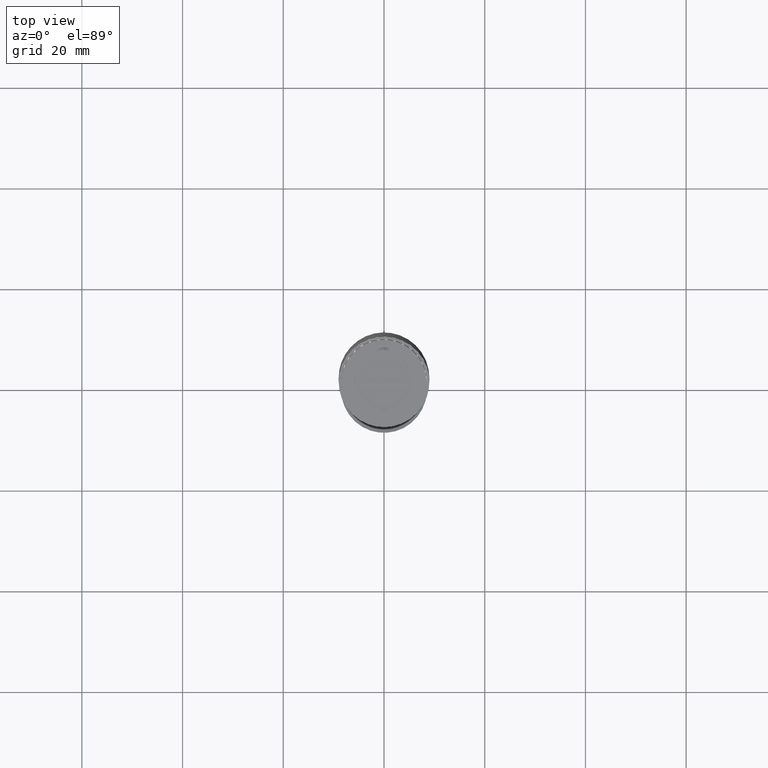
[diagram: clean part render]
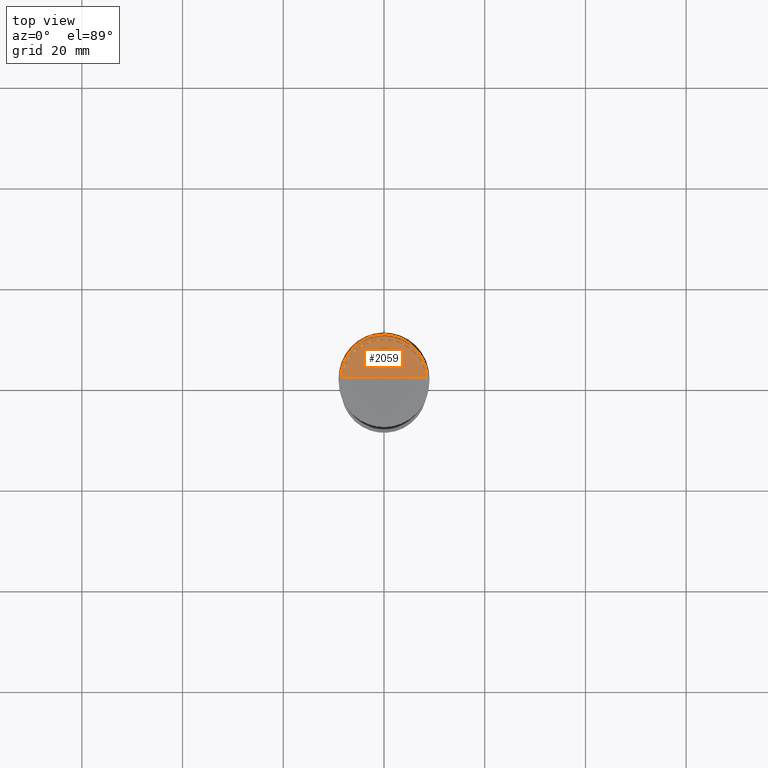
[diagram: same view with one face highlighted and labeled with its STEP entity id]
A machine part, top view. The second image highlights one B-rep face of the part: STEP entity #2059.
In plain terms, the highlighted face is a freeform B-spline surface patch.
Its self-contained STEP definition (entity closure, byte-faithful):
#1794=CARTESIAN_POINT('',(8.5,0.0,48.0));
#1795=CARTESIAN_POINT('',(8.5,8.5,48.0));
#1796=CARTESIAN_POINT('',(0.0,8.5,48.0));
#1797=CARTESIAN_POINT('',(-8.5,8.5,48.0));
#1798=CARTESIAN_POINT('',(-8.5,0.0,48.0));
#1799=CARTESIAN_POINT('',(0.0,0.0,48.0));
#2044=(
BOUNDED_SURFACE()
B_SPLINE_SURFACE(1,2,(
(#1794,#1795,#1796,#1797,#1798),
(#1799,#1799,#1799,#1799,#1799)
), .UNSPECIFIED.,.F.,.F.,.F.)
B_SPLINE_SURFACE_WITH_KNOTS((2,2),(3,2,3),(
0.0,1.0),(
0.0,0.5,1.0), .UNSPECIFIED.)
GEOMETRIC_REPRESENTATION_ITEM()
RATIONAL_B_SPLINE_SURFACE(((1.0,0.707106781187,1.0,0.707106781187,1.0),
(1.0,0.707106781187,1.0,0.707106781187,1.0)
))
REPRESENTATION_ITEM('')
SURFACE()
);
#2045=(
BOUNDED_CURVE()
B_SPLINE_CURVE(2,(#1798,#1797,#1796,#1795,#1794),.UNSPECIFIED.,.F.,.F.)
B_SPLINE_CURVE_WITH_KNOTS((3,2,3),
(0.0,0.5,1.0),.UNSPECIFIED.)
CURVE()
GEOMETRIC_REPRESENTATION_ITEM()
RATIONAL_B_SPLINE_CURVE((1.0,0.707106781187,1.0,0.707106781187,1.0))
REPRESENTATION_ITEM('')
);
#2046=(
BOUNDED_CURVE()
B_SPLINE_CURVE(1,(#1794,#1799),.UNSPECIFIED.,.F.,.F.)
B_SPLINE_CURVE_WITH_KNOTS((2,2),
(0.0,1.0),.UNSPECIFIED.)
CURVE()
GEOMETRIC_REPRESENTATION_ITEM()
RATIONAL_B_SPLINE_CURVE((1.0,1.0))
REPRESENTATION_ITEM('')
);
#2047=(
BOUNDED_CURVE()
B_SPLINE_CURVE(1,(#1799,#1798),.UNSPECIFIED.,.F.,.F.)
B_SPLINE_CURVE_WITH_KNOTS((2,2),
(0.0,1.0),.UNSPECIFIED.)
CURVE()
GEOMETRIC_REPRESENTATION_ITEM()
RATIONAL_B_SPLINE_CURVE((1.0,1.0))
REPRESENTATION_ITEM('')
);
#2048=VERTEX_POINT('',#1794);
#2049=VERTEX_POINT('',#1798);
#2050=VERTEX_POINT('',#1799);
#2051=EDGE_CURVE('',#2049,#2048,#2045,.T.);
#2052=EDGE_CURVE('',#2048,#2050,#2046,.T.);
#2053=EDGE_CURVE('',#2050,#2049,#2047,.T.);
#2054=ORIENTED_EDGE('',*,*,#2051,.T.);
#2055=ORIENTED_EDGE('',*,*,#2052,.T.);
#2056=ORIENTED_EDGE('',*,*,#2053,.T.);
#2057=EDGE_LOOP('',(#2054,#2055,#2056));
#2058=FACE_OUTER_BOUND('',#2057,.T.);
#2059=ADVANCED_FACE('',(#2058),#2044,.T.);